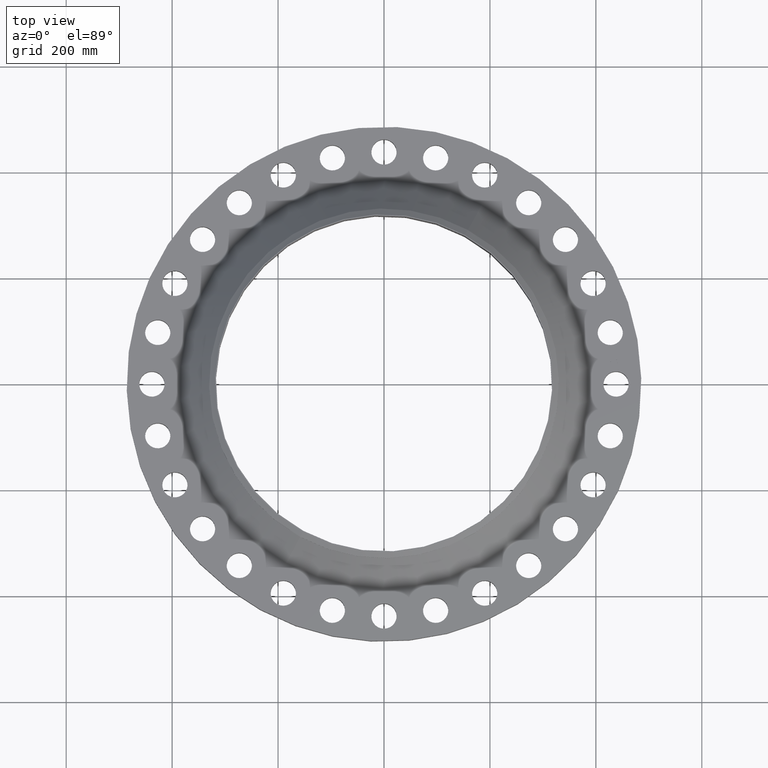
[diagram: clean part render]
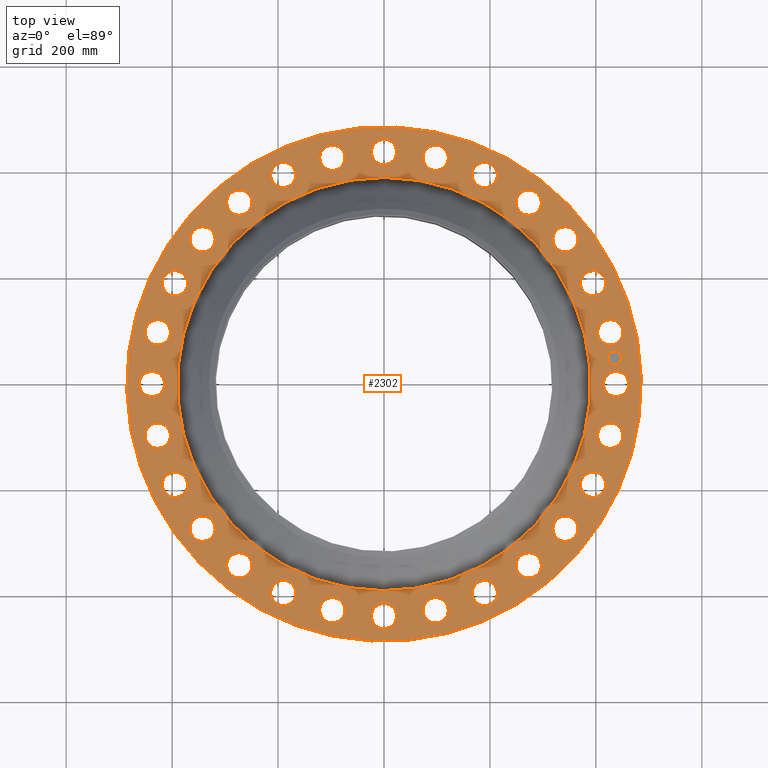
[diagram: same view with one face highlighted and labeled with its STEP entity id]
A machine part, top view. The second image highlights one B-rep face of the part: STEP entity #2302.
In plain terms, the highlighted planar face has unit normal (0, 0, -1).
Its self-contained STEP definition (entity closure, byte-faithful):
#63=CARTESIAN_POINT('Vertex',(417.196838754,11.4467641598,71.3740000003)) ;
#77=CARTESIAN_POINT('Vertex',(459.10316125,-11.4467641598,71.3740000003)) ;
#80=CARTESIAN_POINT('Axis2P3D Location',(438.150000002,0.,71.3740000003)) ;
#97=CARTESIAN_POINT('Axis2P3D Location',(438.150000002,0.,71.3740000003)) ;
#127=CARTESIAN_POINT('Vertex',(-232.892941016,-426.307669004,71.3740000003)) ;
#130=CARTESIAN_POINT('Axis2P3D Location',(0.,0.,71.3740000003)) ;
#134=CARTESIAN_POINT('Vertex',(232.892941016,426.307669004,71.3740000003)) ;
#154=CARTESIAN_POINT('Axis2P3D Location',(0.,0.,71.3740000003)) ;
#171=CARTESIAN_POINT('Axis2P3D Location',(0.,0.,71.3740000003)) ;
#175=CARTESIAN_POINT('Vertex',(187.03489282,342.365074838,71.3740000003)) ;
#177=CARTESIAN_POINT('Vertex',(-187.03489282,-342.365074838,71.3740000003)) ;
#206=CARTESIAN_POINT('Axis2P3D Location',(0.,0.,71.3740000003)) ;
#1007=CARTESIAN_POINT('Vertex',(-409.283987627,81.6752603196,71.3740000003)) ;
#1014=CARTESIAN_POINT('Vertex',(-445.045341821,113.319834107,71.3740000003)) ;
#1017=CARTESIAN_POINT('Axis2P3D Location',(-427.164664724,97.4975472133,71.3740000003)) ;
#1029=CARTESIAN_POINT('Axis2P3D Location',(-427.164664724,97.4975472133,71.3740000003)) ;
#1050=CARTESIAN_POINT('Vertex',(380.847928339,-170.7017462,71.3740000003)) ;
#1057=CARTESIAN_POINT('Vertex',(408.671090607,-209.51057439,71.3740000003)) ;
#1060=CARTESIAN_POINT('Axis2P3D Location',(394.759509473,-190.106160295,71.3740000003)) ;
#1072=CARTESIAN_POINT('Axis2P3D Location',(394.759509473,-190.106160295,71.3740000003)) ;
#1093=CARTESIAN_POINT('Vertex',(-380.847928339,170.7017462,71.3740000003)) ;
#1100=CARTESIAN_POINT('Vertex',(-408.671090607,209.51057439,71.3740000003)) ;
#1103=CARTESIAN_POINT('Axis2P3D Location',(-394.759509473,190.106160295,71.3740000003)) ;
#1115=CARTESIAN_POINT('Axis2P3D Location',(-394.759509473,190.106160295,71.3740000003)) ;
#1136=CARTESIAN_POINT('Vertex',(333.314563642,-251.168533738,71.3740000003)) ;
#1143=CARTESIAN_POINT('Vertex',(351.804364448,-295.195579633,71.3740000003)) ;
#1146=CARTESIAN_POINT('Axis2P3D Location',(342.559464045,-273.182056685,71.3740000003)) ;
#1158=CARTESIAN_POINT('Axis2P3D Location',(342.559464045,-273.182056685,71.3740000003)) ;
#1179=CARTESIAN_POINT('Vertex',(-333.314563642,251.168533738,71.3740000003)) ;
#1186=CARTESIAN_POINT('Vertex',(-351.804364448,295.195579633,71.3740000003)) ;
#1189=CARTESIAN_POINT('Axis2P3D Location',(-342.559464045,273.182056685,71.3740000003)) ;
#1201=CARTESIAN_POINT('Axis2P3D Location',(-342.559464045,273.182056685,71.3740000003)) ;
#1222=CARTESIAN_POINT('Vertex',(269.067414923,-319.040682206,71.3740000003)) ;
#1229=CARTESIAN_POINT('Vertex',(277.296698448,-366.078245883,71.3740000003)) ;
#1232=CARTESIAN_POINT('Axis2P3D Location',(273.182056685,-342.559464045,71.3740000003)) ;
#1244=CARTESIAN_POINT('Axis2P3D Location',(273.182056685,-342.559464045,71.3740000003)) ;
#1265=CARTESIAN_POINT('Vertex',(-269.067414923,319.040682206,71.3740000003)) ;
#1272=CARTESIAN_POINT('Vertex',(-277.296698448,366.078245883,71.3740000003)) ;
#1275=CARTESIAN_POINT('Axis2P3D Location',(-273.182056685,342.559464045,71.3740000003)) ;
#1287=CARTESIAN_POINT('Axis2P3D Location',(-273.182056685,342.559464045,71.3740000003)) ;
#1308=CARTESIAN_POINT('Vertex',(191.328102493,-370.91479867,71.3740000003)) ;
#1315=CARTESIAN_POINT('Vertex',(188.884218097,-418.604220276,71.3740000003)) ;
#1318=CARTESIAN_POINT('Axis2P3D Location',(190.106160295,-394.759509473,71.3740000003)) ;
#1330=CARTESIAN_POINT('Axis2P3D Location',(190.106160295,-394.759509473,71.3740000003)) ;
#1351=CARTESIAN_POINT('Vertex',(-191.328102493,370.91479867,71.3740000003)) ;
#1358=CARTESIAN_POINT('Vertex',(-188.884218097,418.604220276,71.3740000003)) ;
#1361=CARTESIAN_POINT('Axis2P3D Location',(-190.106160295,394.759509473,71.3740000003)) ;
#1373=CARTESIAN_POINT('Axis2P3D Location',(-190.106160295,394.759509473,71.3740000003)) ;
#1394=CARTESIAN_POINT('Vertex',(103.994800087,-404.189698324,71.3740000003)) ;
#1401=CARTESIAN_POINT('Vertex',(91.00029434,-450.139631125,71.3740000003)) ;
#1404=CARTESIAN_POINT('Axis2P3D Location',(97.4975472133,-427.164664724,71.3740000003)) ;
#1416=CARTESIAN_POINT('Axis2P3D Location',(97.4975472133,-427.164664724,71.3740000003)) ;
#1437=CARTESIAN_POINT('Vertex',(-103.994800087,404.189698324,71.3740000003)) ;
#1444=CARTESIAN_POINT('Vertex',(-91.00029434,450.139631125,71.3740000003)) ;
#1447=CARTESIAN_POINT('Axis2P3D Location',(-97.4975472133,427.164664724,71.3740000003)) ;
#1459=CARTESIAN_POINT('Axis2P3D Location',(-97.4975472133,427.164664724,71.3740000003)) ;
#1480=CARTESIAN_POINT('Vertex',(11.4467641598,-417.196838754,71.3740000003)) ;
#1487=CARTESIAN_POINT('Vertex',(-11.4467641598,-459.10316125,71.3740000003)) ;
#1490=CARTESIAN_POINT('Axis2P3D Location',(6.72743745399E-014,-438.150000002,71.3740000003)) ;
#1502=CARTESIAN_POINT('Axis2P3D Location',(6.72743745399E-014,-438.150000002,71.3740000003)) ;
#1523=CARTESIAN_POINT('Vertex',(-11.4467641598,417.196838754,71.3740000003)) ;
#1530=CARTESIAN_POINT('Vertex',(11.4467641598,459.10316125,71.3740000003)) ;
#1533=CARTESIAN_POINT('Axis2P3D Location',(-2.36434303965E-014,438.150000002,71.3740000003)) ;
#1545=CARTESIAN_POINT('Axis2P3D Location',(-2.36434303965E-014,438.150000002,71.3740000003)) ;
#1566=CARTESIAN_POINT('Vertex',(-81.6752603196,-409.283987627,71.3740000003)) ;
#1573=CARTESIAN_POINT('Vertex',(-113.319834107,-445.045341821,71.3740000003)) ;
#1576=CARTESIAN_POINT('Axis2P3D Location',(-97.4975472133,-427.164664724,71.3740000003)) ;
#1588=CARTESIAN_POINT('Axis2P3D Location',(-97.4975472133,-427.164664724,71.3740000003)) ;
#1609=CARTESIAN_POINT('Vertex',(81.6752603196,409.283987627,71.3740000003)) ;
#1616=CARTESIAN_POINT('Vertex',(113.319834107,445.045341821,71.3740000003)) ;
#1619=CARTESIAN_POINT('Axis2P3D Location',(97.4975472133,427.164664724,71.3740000003)) ;
#1631=CARTESIAN_POINT('Axis2P3D Location',(97.4975472133,427.164664724,71.3740000003)) ;
#1652=CARTESIAN_POINT('Vertex',(-170.7017462,-380.847928339,71.3740000003)) ;
#1659=CARTESIAN_POINT('Vertex',(-209.51057439,-408.671090607,71.3740000003)) ;
#1662=CARTESIAN_POINT('Axis2P3D Location',(-190.106160295,-394.759509473,71.3740000003)) ;
#1674=CARTESIAN_POINT('Axis2P3D Location',(-190.106160295,-394.759509473,71.3740000003)) ;
#1695=CARTESIAN_POINT('Vertex',(170.7017462,380.847928339,71.3740000003)) ;
#1702=CARTESIAN_POINT('Vertex',(209.51057439,408.671090607,71.3740000003)) ;
#1705=CARTESIAN_POINT('Axis2P3D Location',(190.106160295,394.759509473,71.3740000003)) ;
#1717=CARTESIAN_POINT('Axis2P3D Location',(190.106160295,394.759509473,71.3740000003)) ;
#1738=CARTESIAN_POINT('Vertex',(-251.168533738,-333.314563642,71.3740000003)) ;
#1745=CARTESIAN_POINT('Vertex',(-295.195579633,-351.804364448,71.3740000003)) ;
#1748=CARTESIAN_POINT('Axis2P3D Location',(-273.182056685,-342.559464045,71.3740000003)) ;
#1760=CARTESIAN_POINT('Axis2P3D Location',(-273.182056685,-342.559464045,71.3740000003)) ;
#1781=CARTESIAN_POINT('Vertex',(251.168533738,333.314563642,71.3740000003)) ;
#1788=CARTESIAN_POINT('Vertex',(295.195579633,351.804364448,71.3740000003)) ;
#1791=CARTESIAN_POINT('Axis2P3D Location',(273.182056685,342.559464045,71.3740000003)) ;
#1803=CARTESIAN_POINT('Axis2P3D Location',(273.182056685,342.559464045,71.3740000003)) ;
#1824=CARTESIAN_POINT('Vertex',(-319.040682206,-269.067414923,71.3740000003)) ;
#1831=CARTESIAN_POINT('Vertex',(-366.078245883,-277.296698448,71.3740000003)) ;
#1834=CARTESIAN_POINT('Axis2P3D Location',(-342.559464045,-273.182056685,71.3740000003)) ;
#1846=CARTESIAN_POINT('Axis2P3D Location',(-342.559464045,-273.182056685,71.3740000003)) ;
#1867=CARTESIAN_POINT('Vertex',(319.040682206,269.067414923,71.3740000003)) ;
#1874=CARTESIAN_POINT('Vertex',(366.078245883,277.296698448,71.3740000003)) ;
#1877=CARTESIAN_POINT('Axis2P3D Location',(342.559464045,273.182056685,71.3740000003)) ;
#1889=CARTESIAN_POINT('Axis2P3D Location',(342.559464045,273.182056685,71.3740000003)) ;
#1910=CARTESIAN_POINT('Vertex',(-370.91479867,-191.328102493,71.3740000003)) ;
#1917=CARTESIAN_POINT('Vertex',(-418.604220276,-188.884218097,71.3740000003)) ;
#1920=CARTESIAN_POINT('Axis2P3D Location',(-394.759509473,-190.106160295,71.3740000003)) ;
#1932=CARTESIAN_POINT('Axis2P3D Location',(-394.759509473,-190.106160295,71.3740000003)) ;
#1953=CARTESIAN_POINT('Vertex',(370.91479867,191.328102493,71.3740000003)) ;
#1960=CARTESIAN_POINT('Vertex',(418.604220276,188.884218097,71.3740000003)) ;
#1963=CARTESIAN_POINT('Axis2P3D Location',(394.759509473,190.106160295,71.3740000003)) ;
#1975=CARTESIAN_POINT('Axis2P3D Location',(394.759509473,190.106160295,71.3740000003)) ;
#1996=CARTESIAN_POINT('Vertex',(-404.189698324,-103.994800087,71.3740000003)) ;
#2003=CARTESIAN_POINT('Vertex',(-450.139631125,-91.00029434,71.3740000003)) ;
#2006=CARTESIAN_POINT('Axis2P3D Location',(-427.164664724,-97.4975472133,71.3740000003)) ;
#2018=CARTESIAN_POINT('Axis2P3D Location',(-427.164664724,-97.4975472133,71.3740000003)) ;
#2039=CARTESIAN_POINT('Vertex',(404.189698324,103.994800087,71.3740000003)) ;
#2046=CARTESIAN_POINT('Vertex',(450.139631125,91.00029434,71.3740000003)) ;
#2049=CARTESIAN_POINT('Axis2P3D Location',(427.164664724,97.4975472133,71.3740000003)) ;
#2061=CARTESIAN_POINT('Axis2P3D Location',(427.164664724,97.4975472133,71.3740000003)) ;
#2082=CARTESIAN_POINT('Vertex',(-417.196838754,-11.4467641598,71.3740000003)) ;
#2089=CARTESIAN_POINT('Vertex',(-459.10316125,11.4467641598,71.3740000003)) ;
#2092=CARTESIAN_POINT('Axis2P3D Location',(-438.150000002,-2.48235586801E-013,71.3740000003)) ;
#2104=CARTESIAN_POINT('Axis2P3D Location',(-438.150000002,-2.48235586801E-013,71.3740000003)) ;
#2125=CARTESIAN_POINT('Vertex',(409.283987627,-81.6752603196,71.3740000003)) ;
#2132=CARTESIAN_POINT('Vertex',(445.045341821,-113.319834107,71.3740000003)) ;
#2135=CARTESIAN_POINT('Axis2P3D Location',(427.164664724,-97.4975472133,71.3740000003)) ;
#2147=CARTESIAN_POINT('Axis2P3D Location',(427.164664724,-97.4975472133,71.3740000003)) ;
#2159=CARTESIAN_POINT('Axis2P3D Location',(0.,485.775000002,71.3740000003)) ;
#2284=CARTESIAN_POINT('Axis2P3D Location',(435.395004766,49.0572352049,71.3740000003)) ;
#2288=CARTESIAN_POINT('Vertex',(433.973059179,61.6773513451,71.3740000003)) ;
#2290=CARTESIAN_POINT('Vertex',(436.816950354,36.4371190646,71.3740000003)) ;
#2293=CARTESIAN_POINT('Axis2P3D Location',(435.395004766,49.0572352049,71.3740000003)) ;
#81=DIRECTION('Axis2P3D Direction',(0.,-0.,-1.)) ;
#98=DIRECTION('Axis2P3D Direction',(0.,-0.,-1.)) ;
#131=DIRECTION('Axis2P3D Direction',(0.,0.,-1.)) ;
#155=DIRECTION('Axis2P3D Direction',(0.,0.,-1.)) ;
#172=DIRECTION('Axis2P3D Direction',(0.,0.,-1.)) ;
#207=DIRECTION('Axis2P3D Direction',(0.,0.,-1.)) ;
#1018=DIRECTION('Axis2P3D Direction',(0.,0.,-1.)) ;
#1030=DIRECTION('Axis2P3D Direction',(0.,0.,-1.)) ;
#1061=DIRECTION('Axis2P3D Direction',(0.,-0.,-1.)) ;
#1073=DIRECTION('Axis2P3D Direction',(0.,-0.,-1.)) ;
#1104=DIRECTION('Axis2P3D Direction',(0.,0.,-1.)) ;
#1116=DIRECTION('Axis2P3D Direction',(0.,0.,-1.)) ;
#1147=DIRECTION('Axis2P3D Direction',(0.,-0.,-1.)) ;
#1159=DIRECTION('Axis2P3D Direction',(0.,-0.,-1.)) ;
#1190=DIRECTION('Axis2P3D Direction',(0.,0.,-1.)) ;
#1202=DIRECTION('Axis2P3D Direction',(0.,0.,-1.)) ;
#1233=DIRECTION('Axis2P3D Direction',(0.,-0.,-1.)) ;
#1245=DIRECTION('Axis2P3D Direction',(0.,-0.,-1.)) ;
#1276=DIRECTION('Axis2P3D Direction',(0.,0.,-1.)) ;
#1288=DIRECTION('Axis2P3D Direction',(0.,0.,-1.)) ;
#1319=DIRECTION('Axis2P3D Direction',(0.,-0.,-1.)) ;
#1331=DIRECTION('Axis2P3D Direction',(0.,-0.,-1.)) ;
#1362=DIRECTION('Axis2P3D Direction',(0.,0.,-1.)) ;
#1374=DIRECTION('Axis2P3D Direction',(0.,0.,-1.)) ;
#1405=DIRECTION('Axis2P3D Direction',(0.,-0.,-1.)) ;
#1417=DIRECTION('Axis2P3D Direction',(0.,-0.,-1.)) ;
#1448=DIRECTION('Axis2P3D Direction',(0.,0.,-1.)) ;
#1460=DIRECTION('Axis2P3D Direction',(0.,0.,-1.)) ;
#1491=DIRECTION('Axis2P3D Direction',(0.,-0.,-1.)) ;
#1503=DIRECTION('Axis2P3D Direction',(0.,-0.,-1.)) ;
#1534=DIRECTION('Axis2P3D Direction',(0.,0.,-1.)) ;
#1546=DIRECTION('Axis2P3D Direction',(0.,0.,-1.)) ;
#1577=DIRECTION('Axis2P3D Direction',(-0.,0.,-1.)) ;
#1589=DIRECTION('Axis2P3D Direction',(-0.,0.,-1.)) ;
#1620=DIRECTION('Axis2P3D Direction',(0.,0.,-1.)) ;
#1632=DIRECTION('Axis2P3D Direction',(0.,0.,-1.)) ;
#1663=DIRECTION('Axis2P3D Direction',(-0.,0.,-1.)) ;
#1675=DIRECTION('Axis2P3D Direction',(-0.,0.,-1.)) ;
#1706=DIRECTION('Axis2P3D Direction',(0.,0.,-1.)) ;
#1718=DIRECTION('Axis2P3D Direction',(0.,0.,-1.)) ;
#1749=DIRECTION('Axis2P3D Direction',(-0.,0.,-1.)) ;
#1761=DIRECTION('Axis2P3D Direction',(-0.,0.,-1.)) ;
#1792=DIRECTION('Axis2P3D Direction',(0.,0.,-1.)) ;
#1804=DIRECTION('Axis2P3D Direction',(0.,0.,-1.)) ;
#1835=DIRECTION('Axis2P3D Direction',(-0.,0.,-1.)) ;
#1847=DIRECTION('Axis2P3D Direction',(-0.,0.,-1.)) ;
#1878=DIRECTION('Axis2P3D Direction',(0.,0.,-1.)) ;
#1890=DIRECTION('Axis2P3D Direction',(0.,0.,-1.)) ;
#1921=DIRECTION('Axis2P3D Direction',(-0.,0.,-1.)) ;
#1933=DIRECTION('Axis2P3D Direction',(-0.,0.,-1.)) ;
#1964=DIRECTION('Axis2P3D Direction',(0.,0.,-1.)) ;
#1976=DIRECTION('Axis2P3D Direction',(0.,0.,-1.)) ;
#2007=DIRECTION('Axis2P3D Direction',(-0.,0.,-1.)) ;
#2019=DIRECTION('Axis2P3D Direction',(-0.,0.,-1.)) ;
#2050=DIRECTION('Axis2P3D Direction',(0.,0.,-1.)) ;
#2062=DIRECTION('Axis2P3D Direction',(0.,0.,-1.)) ;
#2093=DIRECTION('Axis2P3D Direction',(-0.,0.,-1.)) ;
#2105=DIRECTION('Axis2P3D Direction',(-0.,0.,-1.)) ;
#2136=DIRECTION('Axis2P3D Direction',(0.,-0.,-1.)) ;
#2148=DIRECTION('Axis2P3D Direction',(0.,-0.,-1.)) ;
#2160=DIRECTION('Axis2P3D Direction',(0.,0.,-1.)) ;
#2161=DIRECTION('Axis2P3D XDirection',(1.,0.,0.)) ;
#2285=DIRECTION('Axis2P3D Direction',(0.,0.,-1.)) ;
#2294=DIRECTION('Axis2P3D Direction',(0.,0.,-1.)) ;
#82=AXIS2_PLACEMENT_3D('Circle Axis2P3D',#80,#81,$) ;
#99=AXIS2_PLACEMENT_3D('Circle Axis2P3D',#97,#98,$) ;
#132=AXIS2_PLACEMENT_3D('Circle Axis2P3D',#130,#131,$) ;
#156=AXIS2_PLACEMENT_3D('Circle Axis2P3D',#154,#155,$) ;
#173=AXIS2_PLACEMENT_3D('Circle Axis2P3D',#171,#172,$) ;
#208=AXIS2_PLACEMENT_3D('Circle Axis2P3D',#206,#207,$) ;
#1019=AXIS2_PLACEMENT_3D('Circle Axis2P3D',#1017,#1018,$) ;
#1031=AXIS2_PLACEMENT_3D('Circle Axis2P3D',#1029,#1030,$) ;
#1062=AXIS2_PLACEMENT_3D('Circle Axis2P3D',#1060,#1061,$) ;
#1074=AXIS2_PLACEMENT_3D('Circle Axis2P3D',#1072,#1073,$) ;
#1105=AXIS2_PLACEMENT_3D('Circle Axis2P3D',#1103,#1104,$) ;
#1117=AXIS2_PLACEMENT_3D('Circle Axis2P3D',#1115,#1116,$) ;
#1148=AXIS2_PLACEMENT_3D('Circle Axis2P3D',#1146,#1147,$) ;
#1160=AXIS2_PLACEMENT_3D('Circle Axis2P3D',#1158,#1159,$) ;
#1191=AXIS2_PLACEMENT_3D('Circle Axis2P3D',#1189,#1190,$) ;
#1203=AXIS2_PLACEMENT_3D('Circle Axis2P3D',#1201,#1202,$) ;
#1234=AXIS2_PLACEMENT_3D('Circle Axis2P3D',#1232,#1233,$) ;
#1246=AXIS2_PLACEMENT_3D('Circle Axis2P3D',#1244,#1245,$) ;
#1277=AXIS2_PLACEMENT_3D('Circle Axis2P3D',#1275,#1276,$) ;
#1289=AXIS2_PLACEMENT_3D('Circle Axis2P3D',#1287,#1288,$) ;
#1320=AXIS2_PLACEMENT_3D('Circle Axis2P3D',#1318,#1319,$) ;
#1332=AXIS2_PLACEMENT_3D('Circle Axis2P3D',#1330,#1331,$) ;
#1363=AXIS2_PLACEMENT_3D('Circle Axis2P3D',#1361,#1362,$) ;
#1375=AXIS2_PLACEMENT_3D('Circle Axis2P3D',#1373,#1374,$) ;
#1406=AXIS2_PLACEMENT_3D('Circle Axis2P3D',#1404,#1405,$) ;
#1418=AXIS2_PLACEMENT_3D('Circle Axis2P3D',#1416,#1417,$) ;
#1449=AXIS2_PLACEMENT_3D('Circle Axis2P3D',#1447,#1448,$) ;
#1461=AXIS2_PLACEMENT_3D('Circle Axis2P3D',#1459,#1460,$) ;
#1492=AXIS2_PLACEMENT_3D('Circle Axis2P3D',#1490,#1491,$) ;
#1504=AXIS2_PLACEMENT_3D('Circle Axis2P3D',#1502,#1503,$) ;
#1535=AXIS2_PLACEMENT_3D('Circle Axis2P3D',#1533,#1534,$) ;
#1547=AXIS2_PLACEMENT_3D('Circle Axis2P3D',#1545,#1546,$) ;
#1578=AXIS2_PLACEMENT_3D('Circle Axis2P3D',#1576,#1577,$) ;
#1590=AXIS2_PLACEMENT_3D('Circle Axis2P3D',#1588,#1589,$) ;
#1621=AXIS2_PLACEMENT_3D('Circle Axis2P3D',#1619,#1620,$) ;
#1633=AXIS2_PLACEMENT_3D('Circle Axis2P3D',#1631,#1632,$) ;
#1664=AXIS2_PLACEMENT_3D('Circle Axis2P3D',#1662,#1663,$) ;
#1676=AXIS2_PLACEMENT_3D('Circle Axis2P3D',#1674,#1675,$) ;
#1707=AXIS2_PLACEMENT_3D('Circle Axis2P3D',#1705,#1706,$) ;
#1719=AXIS2_PLACEMENT_3D('Circle Axis2P3D',#1717,#1718,$) ;
#1750=AXIS2_PLACEMENT_3D('Circle Axis2P3D',#1748,#1749,$) ;
#1762=AXIS2_PLACEMENT_3D('Circle Axis2P3D',#1760,#1761,$) ;
#1793=AXIS2_PLACEMENT_3D('Circle Axis2P3D',#1791,#1792,$) ;
#1805=AXIS2_PLACEMENT_3D('Circle Axis2P3D',#1803,#1804,$) ;
#1836=AXIS2_PLACEMENT_3D('Circle Axis2P3D',#1834,#1835,$) ;
#1848=AXIS2_PLACEMENT_3D('Circle Axis2P3D',#1846,#1847,$) ;
#1879=AXIS2_PLACEMENT_3D('Circle Axis2P3D',#1877,#1878,$) ;
#1891=AXIS2_PLACEMENT_3D('Circle Axis2P3D',#1889,#1890,$) ;
#1922=AXIS2_PLACEMENT_3D('Circle Axis2P3D',#1920,#1921,$) ;
#1934=AXIS2_PLACEMENT_3D('Circle Axis2P3D',#1932,#1933,$) ;
#1965=AXIS2_PLACEMENT_3D('Circle Axis2P3D',#1963,#1964,$) ;
#1977=AXIS2_PLACEMENT_3D('Circle Axis2P3D',#1975,#1976,$) ;
#2008=AXIS2_PLACEMENT_3D('Circle Axis2P3D',#2006,#2007,$) ;
#2020=AXIS2_PLACEMENT_3D('Circle Axis2P3D',#2018,#2019,$) ;
#2051=AXIS2_PLACEMENT_3D('Circle Axis2P3D',#2049,#2050,$) ;
#2063=AXIS2_PLACEMENT_3D('Circle Axis2P3D',#2061,#2062,$) ;
#2094=AXIS2_PLACEMENT_3D('Circle Axis2P3D',#2092,#2093,$) ;
#2106=AXIS2_PLACEMENT_3D('Circle Axis2P3D',#2104,#2105,$) ;
#2137=AXIS2_PLACEMENT_3D('Circle Axis2P3D',#2135,#2136,$) ;
#2149=AXIS2_PLACEMENT_3D('Circle Axis2P3D',#2147,#2148,$) ;
#2162=AXIS2_PLACEMENT_3D('Plane Axis2P3D',#2159,#2160,#2161) ;
#2286=AXIS2_PLACEMENT_3D('Circle Axis2P3D',#2284,#2285,$) ;
#2295=AXIS2_PLACEMENT_3D('Circle Axis2P3D',#2293,#2294,$) ;
#2165=ORIENTED_EDGE('',*,*,#158,.F.) ;
#2166=ORIENTED_EDGE('',*,*,#136,.F.) ;
#2169=ORIENTED_EDGE('',*,*,#84,.T.) ;
#2170=ORIENTED_EDGE('',*,*,#101,.T.) ;
#2173=ORIENTED_EDGE('',*,*,#210,.T.) ;
#2174=ORIENTED_EDGE('',*,*,#179,.T.) ;
#2177=ORIENTED_EDGE('',*,*,#2151,.T.) ;
#2178=ORIENTED_EDGE('',*,*,#2139,.T.) ;
#2181=ORIENTED_EDGE('',*,*,#1076,.T.) ;
#2182=ORIENTED_EDGE('',*,*,#1064,.T.) ;
#2185=ORIENTED_EDGE('',*,*,#1162,.T.) ;
#2186=ORIENTED_EDGE('',*,*,#1150,.T.) ;
#2189=ORIENTED_EDGE('',*,*,#1248,.T.) ;
#2190=ORIENTED_EDGE('',*,*,#1236,.T.) ;
#2193=ORIENTED_EDGE('',*,*,#1334,.T.) ;
#2194=ORIENTED_EDGE('',*,*,#1322,.T.) ;
#2197=ORIENTED_EDGE('',*,*,#1420,.T.) ;
#2198=ORIENTED_EDGE('',*,*,#1408,.T.) ;
#2201=ORIENTED_EDGE('',*,*,#1506,.T.) ;
#2202=ORIENTED_EDGE('',*,*,#1494,.T.) ;
#2205=ORIENTED_EDGE('',*,*,#1592,.T.) ;
#2206=ORIENTED_EDGE('',*,*,#1580,.T.) ;
#2209=ORIENTED_EDGE('',*,*,#1678,.T.) ;
#2210=ORIENTED_EDGE('',*,*,#1666,.T.) ;
#2213=ORIENTED_EDGE('',*,*,#1764,.T.) ;
#2214=ORIENTED_EDGE('',*,*,#1752,.T.) ;
#2217=ORIENTED_EDGE('',*,*,#1850,.T.) ;
#2218=ORIENTED_EDGE('',*,*,#1838,.T.) ;
#2221=ORIENTED_EDGE('',*,*,#1936,.T.) ;
#2222=ORIENTED_EDGE('',*,*,#1924,.T.) ;
#2225=ORIENTED_EDGE('',*,*,#2022,.T.) ;
#2226=ORIENTED_EDGE('',*,*,#2010,.T.) ;
#2229=ORIENTED_EDGE('',*,*,#2108,.T.) ;
#2230=ORIENTED_EDGE('',*,*,#2096,.T.) ;
#2233=ORIENTED_EDGE('',*,*,#1033,.T.) ;
#2234=ORIENTED_EDGE('',*,*,#1021,.T.) ;
#2237=ORIENTED_EDGE('',*,*,#1119,.T.) ;
#2238=ORIENTED_EDGE('',*,*,#1107,.T.) ;
#2241=ORIENTED_EDGE('',*,*,#1205,.T.) ;
#2242=ORIENTED_EDGE('',*,*,#1193,.T.) ;
#2245=ORIENTED_EDGE('',*,*,#1291,.T.) ;
#2246=ORIENTED_EDGE('',*,*,#1279,.T.) ;
#2249=ORIENTED_EDGE('',*,*,#1377,.T.) ;
#2250=ORIENTED_EDGE('',*,*,#1365,.T.) ;
#2253=ORIENTED_EDGE('',*,*,#1463,.T.) ;
#2254=ORIENTED_EDGE('',*,*,#1451,.T.) ;
#2257=ORIENTED_EDGE('',*,*,#1549,.T.) ;
#2258=ORIENTED_EDGE('',*,*,#1537,.T.) ;
#2261=ORIENTED_EDGE('',*,*,#1635,.T.) ;
#2262=ORIENTED_EDGE('',*,*,#1623,.T.) ;
#2265=ORIENTED_EDGE('',*,*,#1721,.T.) ;
#2266=ORIENTED_EDGE('',*,*,#1709,.T.) ;
#2269=ORIENTED_EDGE('',*,*,#1807,.T.) ;
#2270=ORIENTED_EDGE('',*,*,#1795,.T.) ;
#2273=ORIENTED_EDGE('',*,*,#1893,.T.) ;
#2274=ORIENTED_EDGE('',*,*,#1881,.T.) ;
#2277=ORIENTED_EDGE('',*,*,#1979,.T.) ;
#2278=ORIENTED_EDGE('',*,*,#1967,.T.) ;
#2281=ORIENTED_EDGE('',*,*,#2065,.T.) ;
#2282=ORIENTED_EDGE('',*,*,#2053,.T.) ;
#2299=ORIENTED_EDGE('',*,*,#2292,.T.) ;
#2300=ORIENTED_EDGE('',*,*,#2297,.T.) ;
#2171=FACE_BOUND('',#2168,.T.) ;
#2175=FACE_BOUND('',#2172,.T.) ;
#2179=FACE_BOUND('',#2176,.T.) ;
#2183=FACE_BOUND('',#2180,.T.) ;
#2187=FACE_BOUND('',#2184,.T.) ;
#2191=FACE_BOUND('',#2188,.T.) ;
#2195=FACE_BOUND('',#2192,.T.) ;
#2199=FACE_BOUND('',#2196,.T.) ;
#2203=FACE_BOUND('',#2200,.T.) ;
#2207=FACE_BOUND('',#2204,.T.) ;
#2211=FACE_BOUND('',#2208,.T.) ;
#2215=FACE_BOUND('',#2212,.T.) ;
#2219=FACE_BOUND('',#2216,.T.) ;
#2223=FACE_BOUND('',#2220,.T.) ;
#2227=FACE_BOUND('',#2224,.T.) ;
#2231=FACE_BOUND('',#2228,.T.) ;
#2235=FACE_BOUND('',#2232,.T.) ;
#2239=FACE_BOUND('',#2236,.T.) ;
#2243=FACE_BOUND('',#2240,.T.) ;
#2247=FACE_BOUND('',#2244,.T.) ;
#2251=FACE_BOUND('',#2248,.T.) ;
#2255=FACE_BOUND('',#2252,.T.) ;
#2259=FACE_BOUND('',#2256,.T.) ;
#2263=FACE_BOUND('',#2260,.T.) ;
#2267=FACE_BOUND('',#2264,.T.) ;
#2271=FACE_BOUND('',#2268,.T.) ;
#2275=FACE_BOUND('',#2272,.T.) ;
#2279=FACE_BOUND('',#2276,.T.) ;
#2283=FACE_BOUND('',#2280,.T.) ;
#2301=FACE_BOUND('',#2298,.T.) ;
#2302=ADVANCED_FACE('PartBody',(#2167,#2171,#2175,#2179,#2183,#2187,#2191,#2195,#2199,#2203,#2207,#2211,#2215,#2219,#2223,#2227,#2231,#2235,#2239,#2243,#2247,#2251,#2255,#2259,#2263,#2267,#2271,#2275,#2279,#2283,#2301),#2163,.F.) ;
#83=CIRCLE('generated circle',#82,23.8760000001) ;
#100=CIRCLE('generated circle',#99,23.8760000001) ;
#133=CIRCLE('generated circle',#132,485.775000002) ;
#157=CIRCLE('generated circle',#156,485.775000002) ;
#174=CIRCLE('generated circle',#173,390.122923706) ;
#209=CIRCLE('generated circle',#208,390.122923706) ;
#1020=CIRCLE('generated circle',#1019,23.8760000001) ;
#1032=CIRCLE('generated circle',#1031,23.8760000001) ;
#1063=CIRCLE('generated circle',#1062,23.8760000001) ;
#1075=CIRCLE('generated circle',#1074,23.8760000001) ;
#1106=CIRCLE('generated circle',#1105,23.8760000001) ;
#1118=CIRCLE('generated circle',#1117,23.8760000001) ;
#1149=CIRCLE('generated circle',#1148,23.8760000001) ;
#1161=CIRCLE('generated circle',#1160,23.8760000001) ;
#1192=CIRCLE('generated circle',#1191,23.8760000001) ;
#1204=CIRCLE('generated circle',#1203,23.8760000001) ;
#1235=CIRCLE('generated circle',#1234,23.8760000001) ;
#1247=CIRCLE('generated circle',#1246,23.8760000001) ;
#1278=CIRCLE('generated circle',#1277,23.8760000001) ;
#1290=CIRCLE('generated circle',#1289,23.8760000001) ;
#1321=CIRCLE('generated circle',#1320,23.8760000001) ;
#1333=CIRCLE('generated circle',#1332,23.8760000001) ;
#1364=CIRCLE('generated circle',#1363,23.8760000001) ;
#1376=CIRCLE('generated circle',#1375,23.8760000001) ;
#1407=CIRCLE('generated circle',#1406,23.8760000001) ;
#1419=CIRCLE('generated circle',#1418,23.8760000001) ;
#1450=CIRCLE('generated circle',#1449,23.8760000001) ;
#1462=CIRCLE('generated circle',#1461,23.8760000001) ;
#1493=CIRCLE('generated circle',#1492,23.8760000001) ;
#1505=CIRCLE('generated circle',#1504,23.8760000001) ;
#1536=CIRCLE('generated circle',#1535,23.8760000001) ;
#1548=CIRCLE('generated circle',#1547,23.8760000001) ;
#1579=CIRCLE('generated circle',#1578,23.8760000001) ;
#1591=CIRCLE('generated circle',#1590,23.8760000001) ;
#1622=CIRCLE('generated circle',#1621,23.8760000001) ;
#1634=CIRCLE('generated circle',#1633,23.8760000001) ;
#1665=CIRCLE('generated circle',#1664,23.8760000001) ;
#1677=CIRCLE('generated circle',#1676,23.8760000001) ;
#1708=CIRCLE('generated circle',#1707,23.8760000001) ;
#1720=CIRCLE('generated circle',#1719,23.8760000001) ;
#1751=CIRCLE('generated circle',#1750,23.8760000001) ;
#1763=CIRCLE('generated circle',#1762,23.8760000001) ;
#1794=CIRCLE('generated circle',#1793,23.8760000001) ;
#1806=CIRCLE('generated circle',#1805,23.8760000001) ;
#1837=CIRCLE('generated circle',#1836,23.8760000001) ;
#1849=CIRCLE('generated circle',#1848,23.8760000001) ;
#1880=CIRCLE('generated circle',#1879,23.8760000001) ;
#1892=CIRCLE('generated circle',#1891,23.8760000001) ;
#1923=CIRCLE('generated circle',#1922,23.8760000001) ;
#1935=CIRCLE('generated circle',#1934,23.8760000001) ;
#1966=CIRCLE('generated circle',#1965,23.8760000001) ;
#1978=CIRCLE('generated circle',#1977,23.8760000001) ;
#2009=CIRCLE('generated circle',#2008,23.8760000001) ;
#2021=CIRCLE('generated circle',#2020,23.8760000001) ;
#2052=CIRCLE('generated circle',#2051,23.8760000001) ;
#2064=CIRCLE('generated circle',#2063,23.8760000001) ;
#2095=CIRCLE('generated circle',#2094,23.8760000001) ;
#2107=CIRCLE('generated circle',#2106,23.8760000001) ;
#2138=CIRCLE('generated circle',#2137,23.8760000001) ;
#2150=CIRCLE('generated circle',#2149,23.8760000001) ;
#2287=CIRCLE('generated circle',#2286,12.6999708916) ;
#2296=CIRCLE('generated circle',#2295,12.6999708916) ;
#84=EDGE_CURVE('',#64,#78,#83,.T.) ;
#101=EDGE_CURVE('',#78,#64,#100,.T.) ;
#136=EDGE_CURVE('',#128,#135,#133,.T.) ;
#158=EDGE_CURVE('',#135,#128,#157,.T.) ;
#179=EDGE_CURVE('',#176,#178,#174,.T.) ;
#210=EDGE_CURVE('',#178,#176,#209,.T.) ;
#1021=EDGE_CURVE('',#1008,#1015,#1020,.T.) ;
#1033=EDGE_CURVE('',#1015,#1008,#1032,.T.) ;
#1064=EDGE_CURVE('',#1051,#1058,#1063,.T.) ;
#1076=EDGE_CURVE('',#1058,#1051,#1075,.T.) ;
#1107=EDGE_CURVE('',#1094,#1101,#1106,.T.) ;
#1119=EDGE_CURVE('',#1101,#1094,#1118,.T.) ;
#1150=EDGE_CURVE('',#1137,#1144,#1149,.T.) ;
#1162=EDGE_CURVE('',#1144,#1137,#1161,.T.) ;
#1193=EDGE_CURVE('',#1180,#1187,#1192,.T.) ;
#1205=EDGE_CURVE('',#1187,#1180,#1204,.T.) ;
#1236=EDGE_CURVE('',#1223,#1230,#1235,.T.) ;
#1248=EDGE_CURVE('',#1230,#1223,#1247,.T.) ;
#1279=EDGE_CURVE('',#1266,#1273,#1278,.T.) ;
#1291=EDGE_CURVE('',#1273,#1266,#1290,.T.) ;
#1322=EDGE_CURVE('',#1309,#1316,#1321,.T.) ;
#1334=EDGE_CURVE('',#1316,#1309,#1333,.T.) ;
#1365=EDGE_CURVE('',#1352,#1359,#1364,.T.) ;
#1377=EDGE_CURVE('',#1359,#1352,#1376,.T.) ;
#1408=EDGE_CURVE('',#1395,#1402,#1407,.T.) ;
#1420=EDGE_CURVE('',#1402,#1395,#1419,.T.) ;
#1451=EDGE_CURVE('',#1438,#1445,#1450,.T.) ;
#1463=EDGE_CURVE('',#1445,#1438,#1462,.T.) ;
#1494=EDGE_CURVE('',#1481,#1488,#1493,.T.) ;
#1506=EDGE_CURVE('',#1488,#1481,#1505,.T.) ;
#1537=EDGE_CURVE('',#1524,#1531,#1536,.T.) ;
#1549=EDGE_CURVE('',#1531,#1524,#1548,.T.) ;
#1580=EDGE_CURVE('',#1567,#1574,#1579,.T.) ;
#1592=EDGE_CURVE('',#1574,#1567,#1591,.T.) ;
#1623=EDGE_CURVE('',#1610,#1617,#1622,.T.) ;
#1635=EDGE_CURVE('',#1617,#1610,#1634,.T.) ;
#1666=EDGE_CURVE('',#1653,#1660,#1665,.T.) ;
#1678=EDGE_CURVE('',#1660,#1653,#1677,.T.) ;
#1709=EDGE_CURVE('',#1696,#1703,#1708,.T.) ;
#1721=EDGE_CURVE('',#1703,#1696,#1720,.T.) ;
#1752=EDGE_CURVE('',#1739,#1746,#1751,.T.) ;
#1764=EDGE_CURVE('',#1746,#1739,#1763,.T.) ;
#1795=EDGE_CURVE('',#1782,#1789,#1794,.T.) ;
#1807=EDGE_CURVE('',#1789,#1782,#1806,.T.) ;
#1838=EDGE_CURVE('',#1825,#1832,#1837,.T.) ;
#1850=EDGE_CURVE('',#1832,#1825,#1849,.T.) ;
#1881=EDGE_CURVE('',#1868,#1875,#1880,.T.) ;
#1893=EDGE_CURVE('',#1875,#1868,#1892,.T.) ;
#1924=EDGE_CURVE('',#1911,#1918,#1923,.T.) ;
#1936=EDGE_CURVE('',#1918,#1911,#1935,.T.) ;
#1967=EDGE_CURVE('',#1954,#1961,#1966,.T.) ;
#1979=EDGE_CURVE('',#1961,#1954,#1978,.T.) ;
#2010=EDGE_CURVE('',#1997,#2004,#2009,.T.) ;
#2022=EDGE_CURVE('',#2004,#1997,#2021,.T.) ;
#2053=EDGE_CURVE('',#2040,#2047,#2052,.T.) ;
#2065=EDGE_CURVE('',#2047,#2040,#2064,.T.) ;
#2096=EDGE_CURVE('',#2083,#2090,#2095,.T.) ;
#2108=EDGE_CURVE('',#2090,#2083,#2107,.T.) ;
#2139=EDGE_CURVE('',#2126,#2133,#2138,.T.) ;
#2151=EDGE_CURVE('',#2133,#2126,#2150,.T.) ;
#2292=EDGE_CURVE('',#2289,#2291,#2287,.T.) ;
#2297=EDGE_CURVE('',#2291,#2289,#2296,.T.) ;
#2164=EDGE_LOOP('',(#2165,#2166)) ;
#2168=EDGE_LOOP('',(#2169,#2170)) ;
#2172=EDGE_LOOP('',(#2173,#2174)) ;
#2176=EDGE_LOOP('',(#2177,#2178)) ;
#2180=EDGE_LOOP('',(#2181,#2182)) ;
#2184=EDGE_LOOP('',(#2185,#2186)) ;
#2188=EDGE_LOOP('',(#2189,#2190)) ;
#2192=EDGE_LOOP('',(#2193,#2194)) ;
#2196=EDGE_LOOP('',(#2197,#2198)) ;
#2200=EDGE_LOOP('',(#2201,#2202)) ;
#2204=EDGE_LOOP('',(#2205,#2206)) ;
#2208=EDGE_LOOP('',(#2209,#2210)) ;
#2212=EDGE_LOOP('',(#2213,#2214)) ;
#2216=EDGE_LOOP('',(#2217,#2218)) ;
#2220=EDGE_LOOP('',(#2221,#2222)) ;
#2224=EDGE_LOOP('',(#2225,#2226)) ;
#2228=EDGE_LOOP('',(#2229,#2230)) ;
#2232=EDGE_LOOP('',(#2233,#2234)) ;
#2236=EDGE_LOOP('',(#2237,#2238)) ;
#2240=EDGE_LOOP('',(#2241,#2242)) ;
#2244=EDGE_LOOP('',(#2245,#2246)) ;
#2248=EDGE_LOOP('',(#2249,#2250)) ;
#2252=EDGE_LOOP('',(#2253,#2254)) ;
#2256=EDGE_LOOP('',(#2257,#2258)) ;
#2260=EDGE_LOOP('',(#2261,#2262)) ;
#2264=EDGE_LOOP('',(#2265,#2266)) ;
#2268=EDGE_LOOP('',(#2269,#2270)) ;
#2272=EDGE_LOOP('',(#2273,#2274)) ;
#2276=EDGE_LOOP('',(#2277,#2278)) ;
#2280=EDGE_LOOP('',(#2281,#2282)) ;
#2298=EDGE_LOOP('',(#2299,#2300)) ;
#2167=FACE_OUTER_BOUND('',#2164,.T.) ;
#2163=PLANE('',#2162) ;
#64=VERTEX_POINT('',#63) ;
#78=VERTEX_POINT('',#77) ;
#128=VERTEX_POINT('',#127) ;
#135=VERTEX_POINT('',#134) ;
#176=VERTEX_POINT('',#175) ;
#178=VERTEX_POINT('',#177) ;
#1008=VERTEX_POINT('',#1007) ;
#1015=VERTEX_POINT('',#1014) ;
#1051=VERTEX_POINT('',#1050) ;
#1058=VERTEX_POINT('',#1057) ;
#1094=VERTEX_POINT('',#1093) ;
#1101=VERTEX_POINT('',#1100) ;
#1137=VERTEX_POINT('',#1136) ;
#1144=VERTEX_POINT('',#1143) ;
#1180=VERTEX_POINT('',#1179) ;
#1187=VERTEX_POINT('',#1186) ;
#1223=VERTEX_POINT('',#1222) ;
#1230=VERTEX_POINT('',#1229) ;
#1266=VERTEX_POINT('',#1265) ;
#1273=VERTEX_POINT('',#1272) ;
#1309=VERTEX_POINT('',#1308) ;
#1316=VERTEX_POINT('',#1315) ;
#1352=VERTEX_POINT('',#1351) ;
#1359=VERTEX_POINT('',#1358) ;
#1395=VERTEX_POINT('',#1394) ;
#1402=VERTEX_POINT('',#1401) ;
#1438=VERTEX_POINT('',#1437) ;
#1445=VERTEX_POINT('',#1444) ;
#1481=VERTEX_POINT('',#1480) ;
#1488=VERTEX_POINT('',#1487) ;
#1524=VERTEX_POINT('',#1523) ;
#1531=VERTEX_POINT('',#1530) ;
#1567=VERTEX_POINT('',#1566) ;
#1574=VERTEX_POINT('',#1573) ;
#1610=VERTEX_POINT('',#1609) ;
#1617=VERTEX_POINT('',#1616) ;
#1653=VERTEX_POINT('',#1652) ;
#1660=VERTEX_POINT('',#1659) ;
#1696=VERTEX_POINT('',#1695) ;
#1703=VERTEX_POINT('',#1702) ;
#1739=VERTEX_POINT('',#1738) ;
#1746=VERTEX_POINT('',#1745) ;
#1782=VERTEX_POINT('',#1781) ;
#1789=VERTEX_POINT('',#1788) ;
#1825=VERTEX_POINT('',#1824) ;
#1832=VERTEX_POINT('',#1831) ;
#1868=VERTEX_POINT('',#1867) ;
#1875=VERTEX_POINT('',#1874) ;
#1911=VERTEX_POINT('',#1910) ;
#1918=VERTEX_POINT('',#1917) ;
#1954=VERTEX_POINT('',#1953) ;
#1961=VERTEX_POINT('',#1960) ;
#1997=VERTEX_POINT('',#1996) ;
#2004=VERTEX_POINT('',#2003) ;
#2040=VERTEX_POINT('',#2039) ;
#2047=VERTEX_POINT('',#2046) ;
#2083=VERTEX_POINT('',#2082) ;
#2090=VERTEX_POINT('',#2089) ;
#2126=VERTEX_POINT('',#2125) ;
#2133=VERTEX_POINT('',#2132) ;
#2289=VERTEX_POINT('',#2288) ;
#2291=VERTEX_POINT('',#2290) ;